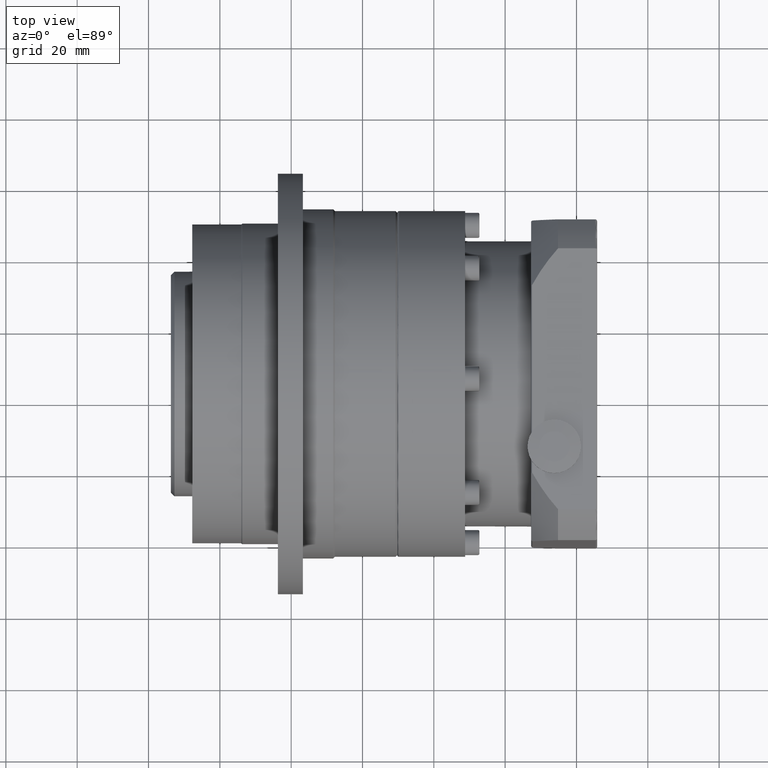
[diagram: clean part render]
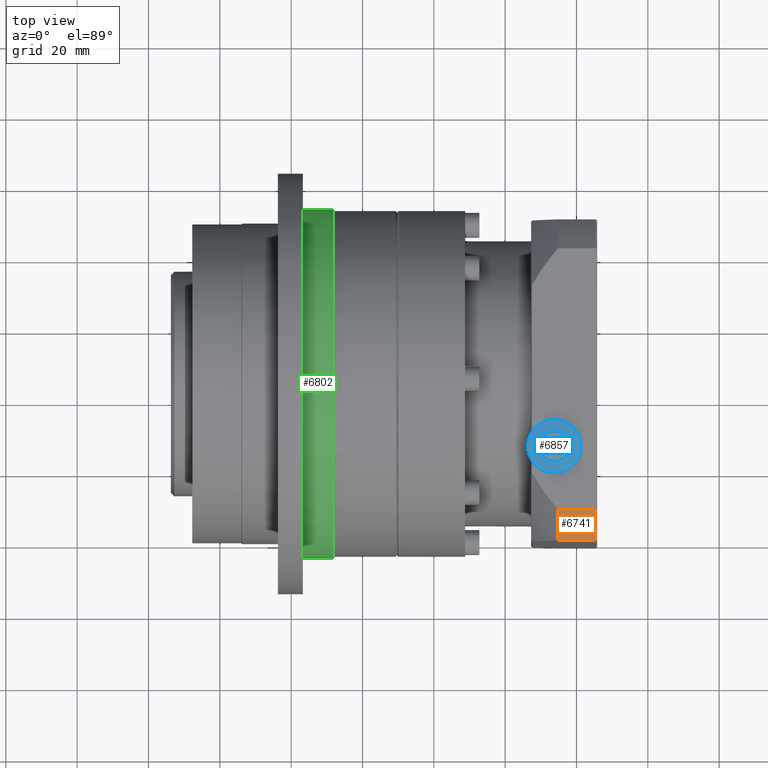
[diagram: same view with three faces highlighted in distinct colors, each labeled with its STEP entity id]
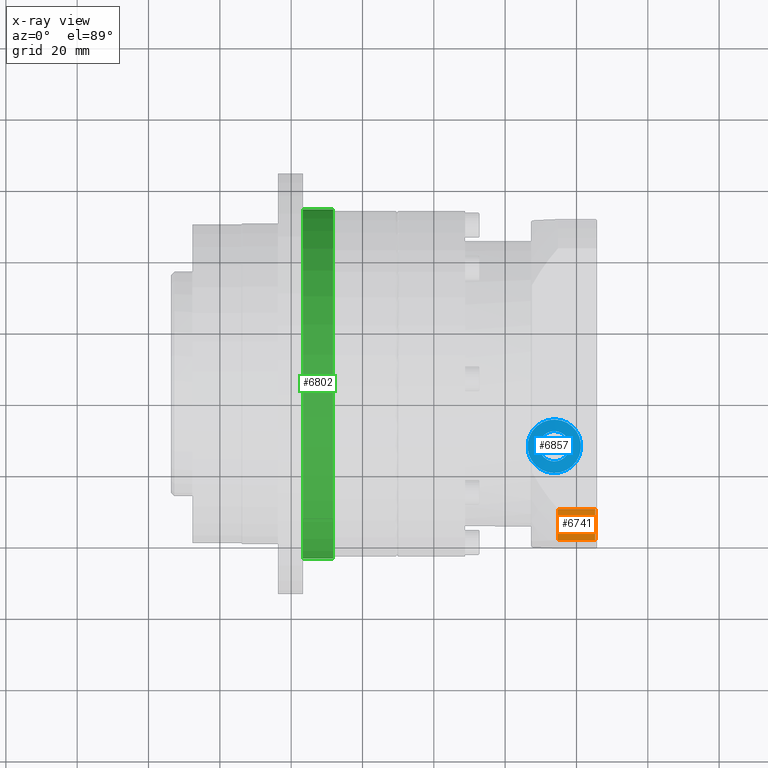
[diagram: x-ray of the same camera — body ghosted, the three highlighted faces saturated]
A machine part, top view with three faces highlighted in distinct colors.
The next image is the same camera in x-ray (body ghosted, the three faces saturated) — at least one of them is partly hidden behind the body in this view.
Their STEP definitions:

[orange] entity #6741 — the highlighted cylindrical surface (partial cylindrical patch) has radius 58 mm, axis along (-1, 0, 0).
#485=LINE('',#10946,#772);
#489=LINE('',#11142,#776);
#772=VECTOR('',#8763,10.4511904588865);
#776=VECTOR('',#8807,10.4511904588865);
#1603=FACE_OUTER_BOUND('',#2170,.T.);
#2170=EDGE_LOOP('',(#5217,#5218,#5219,#5220));
#2779=CIRCLE('',#7407,58.);
#2781=CIRCLE('',#7410,58.);
#3281=VERTEX_POINT('',#10943);
#3282=VERTEX_POINT('',#10945);
#3302=VERTEX_POINT('',#11095);
#3306=VERTEX_POINT('',#11141);
#4001=EDGE_CURVE('',#3281,#3282,#485,.T.);
#4024=EDGE_CURVE('',#3281,#3302,#2779,.T.);
#4028=EDGE_CURVE('',#3306,#3302,#489,.T.);
#4029=EDGE_CURVE('',#3282,#3306,#2781,.T.);
#5217=ORIENTED_EDGE('',*,*,#4024,.T.);
#5218=ORIENTED_EDGE('',*,*,#4028,.F.);
#5219=ORIENTED_EDGE('',*,*,#4029,.F.);
#5220=ORIENTED_EDGE('',*,*,#4001,.F.);
#6072=CYLINDRICAL_SURFACE('',#7409,58.);
#6741=ADVANCED_FACE('',(#1603),#6072,.T.);
#7407=AXIS2_PLACEMENT_3D('',#11098,#8801,#8802);
#7409=AXIS2_PLACEMENT_3D('',#11140,#8805,#8806);
#7410=AXIS2_PLACEMENT_3D('',#11143,#8808,#8809);
#8763=DIRECTION('',(1.,-3.94956931320372E-15,-3.45385805763014E-15));
#8801=DIRECTION('center_axis',(1.,-3.94956931320372E-15,-3.45385805763014E-15));
#8802=DIRECTION('ref_axis',(-3.51393260220579E-15,-0.0153129377686107,-0.999882750094677));
#8805=DIRECTION('center_axis',(-1.,3.94956931320372E-15,3.45385805763014E-15));
#8806=DIRECTION('ref_axis',(-3.51393260220579E-15,-0.0153129377686107,-0.999882750094677));
#8807=DIRECTION('',(-1.,3.94956931320372E-15,3.45385805763014E-15));
#8808=DIRECTION('center_axis',(1.,-3.94956931320372E-15,-3.45385805763014E-15));
#8809=DIRECTION('ref_axis',(-2.70316252822735E-16,-0.696195990847328,0.717851755119473));
#10943=CARTESIAN_POINT('',(74.829047939515,-130.971024835789,34.1214742363094));
#10945=CARTESIAN_POINT('',(85.2802383984015,-130.971024835789,34.1214742363094));
#10946=CARTESIAN_POINT('',(85.7802383984015,-130.971024835789,34.1214742363094));
#11095=CARTESIAN_POINT('',(74.8290479395149,-139.506435950093,25.8435547973258));
#11098=CARTESIAN_POINT('Origin',(74.8290479395149,-95.0720485577598,-11.4335858798785));
#11140=CARTESIAN_POINT('Origin',(85.7802383984015,-95.0720485577599,-11.4335858798785));
#11141=CARTESIAN_POINT('',(85.2802383984014,-139.506435950093,25.8435547973257));
#11142=CARTESIAN_POINT('',(85.7802383984014,-139.506435950093,25.8435547973257));
#11143=CARTESIAN_POINT('Origin',(85.2802383984015,-95.0720485577599,-11.4335858798785));

[blue] entity #6857 — the highlighted conical surface has half-angle 84.726 deg.
#297=CONICAL_SURFACE('',#7658,5.875,84.7261040426483);
#1312=FACE_BOUND('',#2401,.T.);
#1719=FACE_OUTER_BOUND('',#2400,.T.);
#2400=EDGE_LOOP('',(#5615));
#2401=EDGE_LOOP('',(#5616));
#2913=CIRCLE('',#7657,4.25);
#2914=CIRCLE('',#7659,7.5);
#3450=VERTEX_POINT('',#11763);
#3451=VERTEX_POINT('',#11766);
#4214=EDGE_CURVE('',#3450,#3450,#2913,.T.);
#4215=EDGE_CURVE('',#3451,#3451,#2914,.T.);
#5615=ORIENTED_EDGE('',*,*,#4214,.T.);
#5616=ORIENTED_EDGE('',*,*,#4215,.F.);
#6857=ADVANCED_FACE('',(#1719,#1312),#297,.T.);
#7657=AXIS2_PLACEMENT_3D('',#11764,#9334,#9335);
#7658=AXIS2_PLACEMENT_3D('',#11765,#9336,#9337);
#7659=AXIS2_PLACEMENT_3D('',#11767,#9338,#9339);
#9334=DIRECTION('center_axis',(-3.51393260220579E-15,-0.0153129377686105,
-0.999882750094677));
#9335=DIRECTION('ref_axis',(-0.999882750094677,0.0153111423281068,-0.000234486063101823));
#9336=DIRECTION('center_axis',(-3.51393260220579E-15,-0.0153129377686105,
-0.999882750094677));
#9337=DIRECTION('ref_axis',(0.0153129377686104,0.999765513936895,-0.015311142328107));
#9338=DIRECTION('center_axis',(-3.51393260220579E-15,-0.0153129377686105,
-0.999882750094677));
#9339=DIRECTION('ref_axis',(-0.999882750094677,0.0153111423281068,-0.000234486063101823));
#11763=CARTESIAN_POINT('',(73.8453183839182,-109.108765769088,35.2868354622351));
#11764=CARTESIAN_POINT('Origin',(73.7802383984016,-113.357769203319,35.3519078171296));
#11765=CARTESIAN_POINT('Origin',(73.7802383984016,-113.360066143985,35.2019254046153));
#11766=CARTESIAN_POINT('',(73.8950854316661,-105.864121730123,34.9371094246403));
#11767=CARTESIAN_POINT('Origin',(73.7802383984016,-113.36236308465,35.0519429921011));

[green] entity #6802 — the highlighted cylindrical surface (bore or boss wall) has radius 49 mm, axis along (1, 0, -0).
#1237=FACE_BOUND('',#2271,.T.);
#1664=FACE_OUTER_BOUND('',#2270,.T.);
#2270=EDGE_LOOP('',(#5484));
#2271=EDGE_LOOP('',(#5485));
#2848=CIRCLE('',#7537,49.);
#2850=CIRCLE('',#7540,49.);
#3386=VERTEX_POINT('',#11579);
#3388=VERTEX_POINT('',#11584);
#4149=EDGE_CURVE('',#3386,#3386,#2848,.T.);
#4151=EDGE_CURVE('',#3388,#3388,#2850,.T.);
#5484=ORIENTED_EDGE('',*,*,#4151,.T.);
#5485=ORIENTED_EDGE('',*,*,#4149,.F.);
#6103=CYLINDRICAL_SURFACE('',#7539,49.);
#6802=ADVANCED_FACE('',(#1664,#1237),#6103,.T.);
#7537=AXIS2_PLACEMENT_3D('',#11580,#9094,#9095);
#7539=AXIS2_PLACEMENT_3D('',#11583,#9098,#9099);
#7540=AXIS2_PLACEMENT_3D('',#11585,#9100,#9101);
#9094=DIRECTION('center_axis',(1.,5.0633159996887E-15,-5.29528915366341E-15));
#9095=DIRECTION('ref_axis',(-5.21713403870543E-15,-0.0153129377686141,-0.999882750094677));
#9098=DIRECTION('center_axis',(1.,5.0633159996887E-15,-5.29528915366341E-15));
#9099=DIRECTION('ref_axis',(-5.28458614632729E-15,0.999882750094677,-0.0153129377686141));
#9100=DIRECTION('center_axis',(1.,5.0633159996887E-15,-5.29528915366341E-15));
#9101=DIRECTION('ref_axis',(-5.21713403870543E-15,-0.0153129377686141,-0.999882750094677));
#11579=CARTESIAN_POINT('',(11.7802383984012,-46.0777938031172,-12.1839198305403));
#11580=CARTESIAN_POINT('Origin',(11.7802383984015,-95.0720485577564,-11.4335858798782));
#11583=CARTESIAN_POINT('Origin',(7.53023839840145,-95.0720485577564,-11.4335858798782));
#11584=CARTESIAN_POINT('',(3.28023839840119,-46.0777938031173,-12.1839198305402));
#11585=CARTESIAN_POINT('Origin',(3.28023839840144,-95.0720485577565,-11.4335858798782));